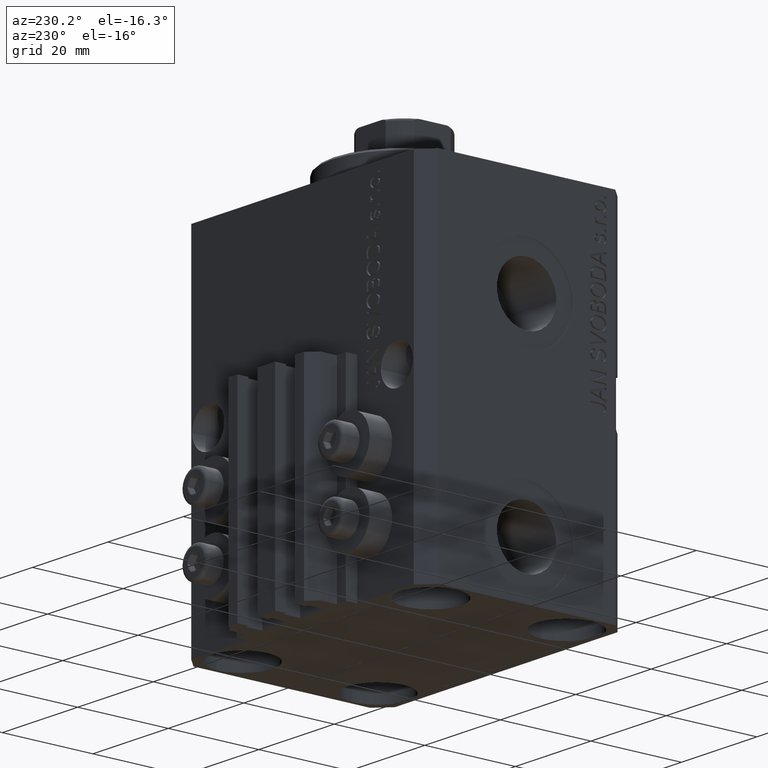
[diagram: clean part render]
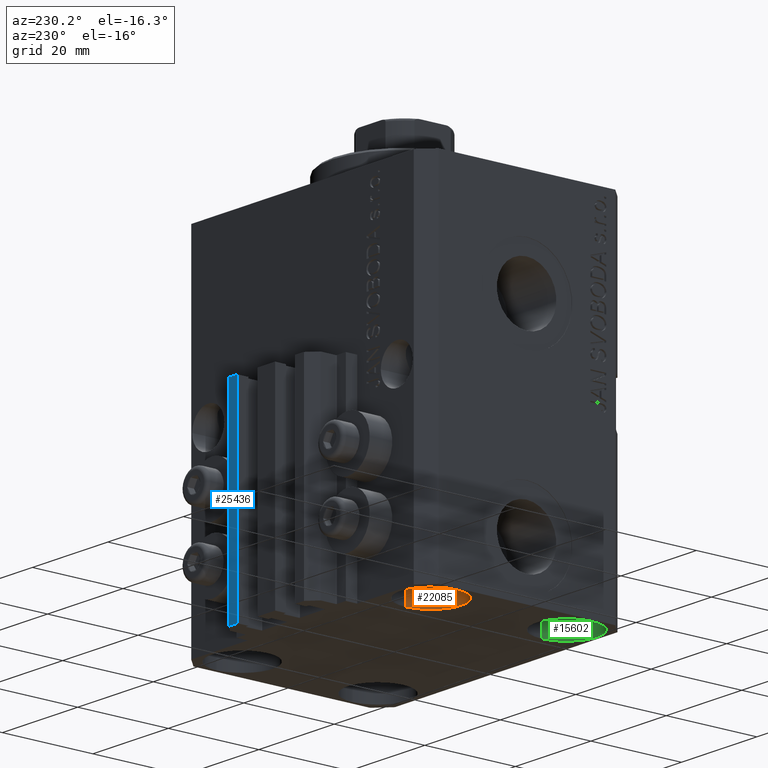
[diagram: same view with three faces highlighted in distinct colors, each labeled with its STEP entity id]
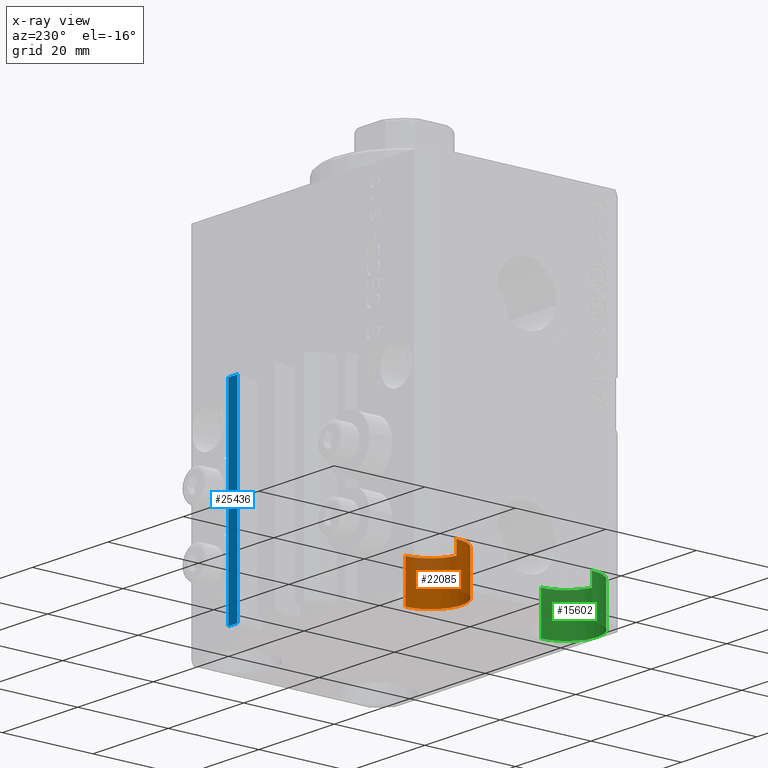
[diagram: x-ray of the same camera — body ghosted, the three highlighted faces saturated]
A machine part, auxiliary view with three faces highlighted in distinct colors.
The next image is the same camera in x-ray (body ghosted, the three faces saturated) — at least one of them is partly hidden behind the body in this view.
Their STEP definitions:

[orange] entity #22085 — the highlighted cylindrical surface (partial cylindrical patch) has radius 6.75 mm, axis along (-0, -0, -1).
#579 = CARTESIAN_POINT ( 'NONE',  ( -25.00000000000000355, 15.00000000000000000, -68.00000000000000000 ) ) ;
#1015 = CARTESIAN_POINT ( 'NONE',  ( -18.24999999997747224, 15.00000000000000000, -68.00000000000000000 ) ) ;
#4065 = FACE_OUTER_BOUND ( 'NONE', #39353, .T. ) ;
#5772 = ORIENTED_EDGE ( 'NONE', *, *, #36677, .F. ) ;
#5950 = VERTEX_POINT ( 'NONE', #9727 ) ;
#6731 = CARTESIAN_POINT ( 'NONE',  ( -18.24999999997747224, 15.00000000000000000, -77.00000000000000000 ) ) ;
#7647 = VECTOR ( 'NONE', #30046, 1000.000000000000000 ) ;
#7975 = DIRECTION ( 'NONE',  ( 1.000000000000000000, 0.000000000000000000, 0.000000000000000000 ) ) ;
#9445 = DIRECTION ( 'NONE',  ( -0.000000000000000000, -0.000000000000000000, -1.000000000000000000 ) ) ;
#9727 = CARTESIAN_POINT ( 'NONE',  ( -31.75000000002253842, 15.00000000000000000, -68.00000000000000000 ) ) ;
#11693 = CARTESIAN_POINT ( 'NONE',  ( -25.00000000000000355, 15.00000000000000000, -68.00000000000000000 ) ) ;
#12301 = VERTEX_POINT ( 'NONE', #6731 ) ;
#13266 = CARTESIAN_POINT ( 'NONE',  ( -18.24999999997747224, 15.00000000000000000, -68.00000000000000000 ) ) ;
#13979 = LINE ( 'NONE', #13266, #36843 ) ;
#14790 = CIRCLE ( 'NONE', #17842, 6.750000000022533087 ) ;
#16071 = DIRECTION ( 'NONE',  ( 1.000000000000000000, 0.000000000000000000, 0.000000000000000000 ) ) ;
#17842 = AXIS2_PLACEMENT_3D ( 'NONE', #37317, #45637, #16071 ) ;
#20207 = EDGE_CURVE ( 'NONE', #5950, #21713, #34893, .T. ) ;
#21713 = VERTEX_POINT ( 'NONE', #1015 ) ;
#22085 = ADVANCED_FACE ( 'NONE', ( #4065 ), #29791, .F. ) ;
#24011 = EDGE_CURVE ( 'NONE', #5950, #44148, #25998, .T. ) ;
#24937 = ORIENTED_EDGE ( 'NONE', *, *, #32207, .T. ) ;
#25998 = LINE ( 'NONE', #40567, #7647 ) ;
#26217 = DIRECTION ( 'NONE',  ( -1.000000000000000000, 0.000000000000000000, 0.000000000000000000 ) ) ;
#28874 = AXIS2_PLACEMENT_3D ( 'NONE', #11693, #30029, #26217 ) ;
#29791 = CYLINDRICAL_SURFACE ( 'NONE', #28874, 6.750000000022533087 ) ;
#30029 = DIRECTION ( 'NONE',  ( -0.000000000000000000, -0.000000000000000000, -1.000000000000000000 ) ) ;
#30046 = DIRECTION ( 'NONE',  ( -0.000000000000000000, -0.000000000000000000, -1.000000000000000000 ) ) ;
#31063 = AXIS2_PLACEMENT_3D ( 'NONE', #579, #40650, #7975 ) ;
#32203 = CARTESIAN_POINT ( 'NONE',  ( -31.75000000002253842, 15.00000000000000000, -77.00000000000000000 ) ) ;
#32207 = EDGE_CURVE ( 'NONE', #21713, #12301, #13979, .T. ) ;
#34893 = CIRCLE ( 'NONE', #31063, 6.750000000022533087 ) ;
#35012 = ORIENTED_EDGE ( 'NONE', *, *, #20207, .T. ) ;
#36677 = EDGE_CURVE ( 'NONE', #44148, #12301, #14790, .T. ) ;
#36843 = VECTOR ( 'NONE', #9445, 1000.000000000000000 ) ;
#37317 = CARTESIAN_POINT ( 'NONE',  ( -25.00000000000000355, 15.00000000000000000, -77.00000000000000000 ) ) ;
#39353 = EDGE_LOOP ( 'NONE', ( #35012, #24937, #5772, #45964 ) ) ;
#40567 = CARTESIAN_POINT ( 'NONE',  ( -31.75000000002253842, 15.00000000000000000, -68.00000000000000000 ) ) ;
#40650 = DIRECTION ( 'NONE',  ( -0.000000000000000000, -0.000000000000000000, 1.000000000000000000 ) ) ;
#44148 = VERTEX_POINT ( 'NONE', #32203 ) ;
#45637 = DIRECTION ( 'NONE',  ( -0.000000000000000000, -0.000000000000000000, 1.000000000000000000 ) ) ;
#45964 = ORIENTED_EDGE ( 'NONE', *, *, #24011, .F. ) ;

[blue] entity #25436 — the highlighted planar face has unit normal (-0, 1, 0).
#355 = PLANE ( 'NONE',  #1576 ) ;
#739 = EDGE_CURVE ( 'NONE', #14901, #46388, #16714, .T. ) ;
#803 = DIRECTION ( 'NONE',  ( 0.000000000000000000, 0.000000000000000000, 1.000000000000000000 ) ) ;
#1576 = AXIS2_PLACEMENT_3D ( 'NONE', #14443, #25858, #39963 ) ;
#2572 = VECTOR ( 'NONE', #20100, 1000.000000000000000 ) ;
#5564 = LINE ( 'NONE', #38719, #2572 ) ;
#5639 = DIRECTION ( 'NONE',  ( -1.000000000000000000, -1.476360405086644852E-15, 0.000000000000000000 ) ) ;
#6227 = ORIENTED_EDGE ( 'NONE', *, *, #15956, .F. ) ;
#7525 = VECTOR ( 'NONE', #5639, 1000.000000000000000 ) ;
#7728 = LINE ( 'NONE', #32994, #24506 ) ;
#9533 = CARTESIAN_POINT ( 'NONE',  ( 7.649999999999995026, 30.49999999999949196, -77.00000000000000000 ) ) ;
#11610 = ORIENTED_EDGE ( 'NONE', *, *, #739, .T. ) ;
#14443 = CARTESIAN_POINT ( 'NONE',  ( 9.999999999999994671, 30.49999999999949551, -77.00000000000000000 ) ) ;
#14901 = VERTEX_POINT ( 'NONE', #24452 ) ;
#15956 = EDGE_CURVE ( 'NONE', #19950, #38051, #38303, .T. ) ;
#16600 = CARTESIAN_POINT ( 'NONE',  ( 9.999999999999994671, 30.49999999999949551, -33.00000000000000000 ) ) ;
#16714 = LINE ( 'NONE', #23845, #25311 ) ;
#18010 = FACE_OUTER_BOUND ( 'NONE', #33163, .T. ) ;
#19950 = VERTEX_POINT ( 'NONE', #36181 ) ;
#20100 = DIRECTION ( 'NONE',  ( 0.000000000000000000, 0.000000000000000000, 1.000000000000000000 ) ) ;
#23845 = CARTESIAN_POINT ( 'NONE',  ( 9.999999999999994671, 30.49999999999949551, -77.00000000000000000 ) ) ;
#24452 = CARTESIAN_POINT ( 'NONE',  ( 9.999999999999994671, 30.49999999999949551, -77.00000000000000000 ) ) ;
#24506 = VECTOR ( 'NONE', #803, 1000.000000000000000 ) ;
#25064 = ORIENTED_EDGE ( 'NONE', *, *, #31508, .F. ) ;
#25311 = VECTOR ( 'NONE', #27917, 1000.000000000000000 ) ;
#25436 = ADVANCED_FACE ( 'NONE', ( #18010 ), #355, .T. ) ;
#25858 = DIRECTION ( 'NONE',  ( -1.476360405086644852E-15, 1.000000000000000000, 0.000000000000000000 ) ) ;
#27917 = DIRECTION ( 'NONE',  ( -1.000000000000000000, -1.476360405086644852E-15, 0.000000000000000000 ) ) ;
#27981 = EDGE_CURVE ( 'NONE', #46388, #38051, #7728, .T. ) ;
#31508 = EDGE_CURVE ( 'NONE', #14901, #19950, #5564, .T. ) ;
#32994 = CARTESIAN_POINT ( 'NONE',  ( 7.649999999999995026, 30.49999999999949196, -77.00000000000000000 ) ) ;
#33163 = EDGE_LOOP ( 'NONE', ( #6227, #25064, #11610, #41246 ) ) ;
#35323 = CARTESIAN_POINT ( 'NONE',  ( 7.649999999999995026, 30.49999999999949196, -33.00000000000000000 ) ) ;
#36181 = CARTESIAN_POINT ( 'NONE',  ( 9.999999999999994671, 30.49999999999949551, -33.00000000000000000 ) ) ;
#38051 = VERTEX_POINT ( 'NONE', #35323 ) ;
#38303 = LINE ( 'NONE', #16600, #7525 ) ;
#38719 = CARTESIAN_POINT ( 'NONE',  ( 9.999999999999994671, 30.49999999999949551, -77.00000000000000000 ) ) ;
#39963 = DIRECTION ( 'NONE',  ( -1.000000000000000000, -1.476360405086644852E-15, 0.000000000000000000 ) ) ;
#41246 = ORIENTED_EDGE ( 'NONE', *, *, #27981, .T. ) ;
#46388 = VERTEX_POINT ( 'NONE', #9533 ) ;

[green] entity #15602 — the highlighted cylindrical surface (partial cylindrical patch) has radius 6.75 mm, axis along (-0, -0, -1).
#548 = VECTOR ( 'NONE', #21485, 1000.000000000000000 ) ;
#594 = CARTESIAN_POINT ( 'NONE',  ( -18.24999999995846167, -15.00000000000000000, -68.00000000000000000 ) ) ;
#634 = AXIS2_PLACEMENT_3D ( 'NONE', #6478, #2657, #17191 ) ;
#1020 = DIRECTION ( 'NONE',  ( -0.000000000000000000, -0.000000000000000000, 1.000000000000000000 ) ) ;
#2657 = DIRECTION ( 'NONE',  ( -0.000000000000000000, -0.000000000000000000, -1.000000000000000000 ) ) ;
#3367 = FACE_OUTER_BOUND ( 'NONE', #38722, .T. ) ;
#4281 = CARTESIAN_POINT ( 'NONE',  ( -18.24999999995845812, -15.00000000000000000, -77.00000000000000000 ) ) ;
#6478 = CARTESIAN_POINT ( 'NONE',  ( -25.00000000000000355, -15.00000000000000000, -68.00000000000000000 ) ) ;
#9446 = EDGE_CURVE ( 'NONE', #27946, #32558, #28736, .T. ) ;
#9603 = EDGE_CURVE ( 'NONE', #27946, #40755, #25532, .T. ) ;
#9802 = AXIS2_PLACEMENT_3D ( 'NONE', #26279, #1020, #30321 ) ;
#10290 = CYLINDRICAL_SURFACE ( 'NONE', #634, 6.750000000041545434 ) ;
#11583 = ORIENTED_EDGE ( 'NONE', *, *, #35452, .T. ) ;
#13442 = VERTEX_POINT ( 'NONE', #4281 ) ;
#14726 = VECTOR ( 'NONE', #25163, 1000.000000000000000 ) ;
#15602 = ADVANCED_FACE ( 'NONE', ( #3367 ), #10290, .F. ) ;
#16607 = EDGE_CURVE ( 'NONE', #40755, #13442, #38731, .T. ) ;
#17191 = DIRECTION ( 'NONE',  ( -1.000000000000000000, 0.000000000000000000, 0.000000000000000000 ) ) ;
#18677 = CARTESIAN_POINT ( 'NONE',  ( -25.00000000000000355, -15.00000000000000000, -68.00000000000000000 ) ) ;
#21485 = DIRECTION ( 'NONE',  ( -0.000000000000000000, -0.000000000000000000, -1.000000000000000000 ) ) ;
#21661 = ORIENTED_EDGE ( 'NONE', *, *, #9603, .F. ) ;
#22481 = DIRECTION ( 'NONE',  ( -0.000000000000000000, -0.000000000000000000, 1.000000000000000000 ) ) ;
#24423 = CARTESIAN_POINT ( 'NONE',  ( -31.75000000004154899, -15.00000000000000000, -68.00000000000000000 ) ) ;
#25163 = DIRECTION ( 'NONE',  ( -0.000000000000000000, -0.000000000000000000, -1.000000000000000000 ) ) ;
#25532 = LINE ( 'NONE', #35333, #548 ) ;
#26279 = CARTESIAN_POINT ( 'NONE',  ( -25.00000000000000355, -15.00000000000000000, -77.00000000000000000 ) ) ;
#27946 = VERTEX_POINT ( 'NONE', #24423 ) ;
#28736 = CIRCLE ( 'NONE', #39414, 6.750000000041541881 ) ;
#30321 = DIRECTION ( 'NONE',  ( 1.000000000000000000, 0.000000000000000000, 0.000000000000000000 ) ) ;
#31545 = CARTESIAN_POINT ( 'NONE',  ( -18.24999999995845812, -15.00000000000000000, -68.00000000000000000 ) ) ;
#32558 = VERTEX_POINT ( 'NONE', #31545 ) ;
#33211 = DIRECTION ( 'NONE',  ( 1.000000000000000000, 0.000000000000000000, 0.000000000000000000 ) ) ;
#35333 = CARTESIAN_POINT ( 'NONE',  ( -31.75000000004154899, -15.00000000000000000, -68.00000000000000000 ) ) ;
#35452 = EDGE_CURVE ( 'NONE', #32558, #13442, #43991, .T. ) ;
#36111 = ORIENTED_EDGE ( 'NONE', *, *, #16607, .F. ) ;
#38722 = EDGE_LOOP ( 'NONE', ( #44237, #11583, #36111, #21661 ) ) ;
#38731 = CIRCLE ( 'NONE', #9802, 6.750000000041541881 ) ;
#39414 = AXIS2_PLACEMENT_3D ( 'NONE', #18677, #22481, #33211 ) ;
#40755 = VERTEX_POINT ( 'NONE', #45073 ) ;
#43991 = LINE ( 'NONE', #594, #14726 ) ;
#44237 = ORIENTED_EDGE ( 'NONE', *, *, #9446, .T. ) ;
#45073 = CARTESIAN_POINT ( 'NONE',  ( -31.75000000004154899, -15.00000000000000000, -77.00000000000000000 ) ) ;